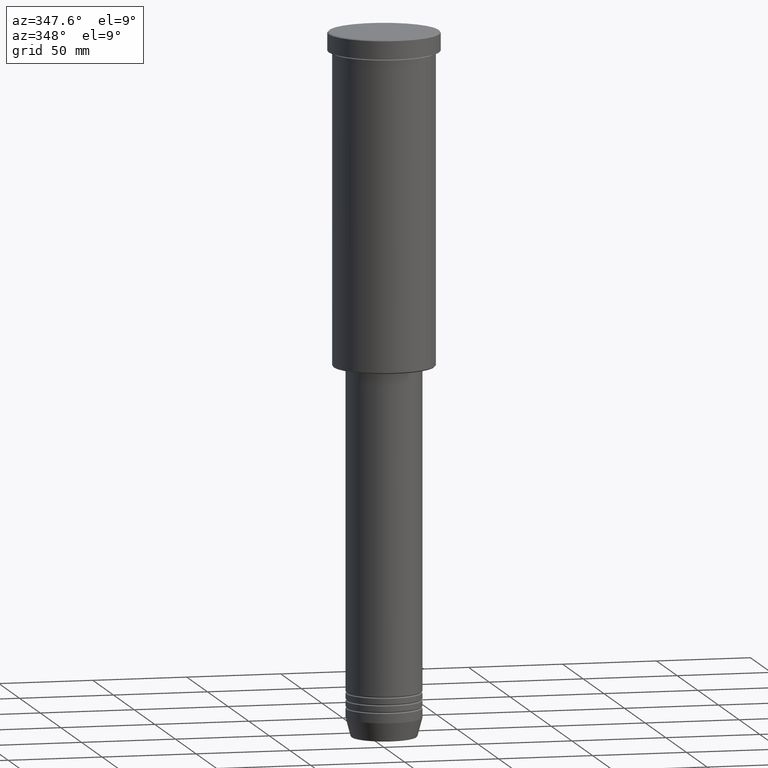
[diagram: clean part render]
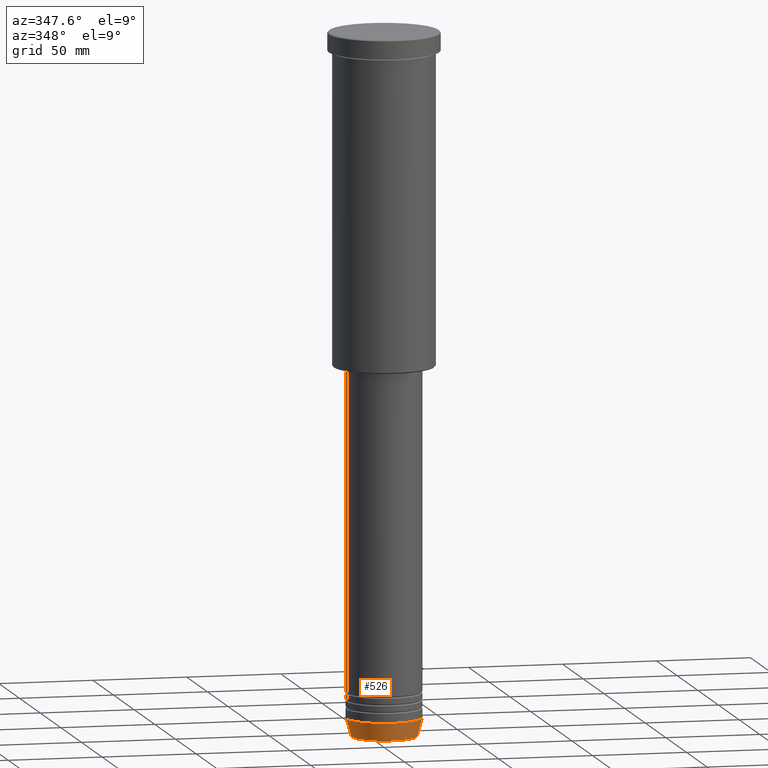
[diagram: same view with one face highlighted and labeled with its STEP entity id]
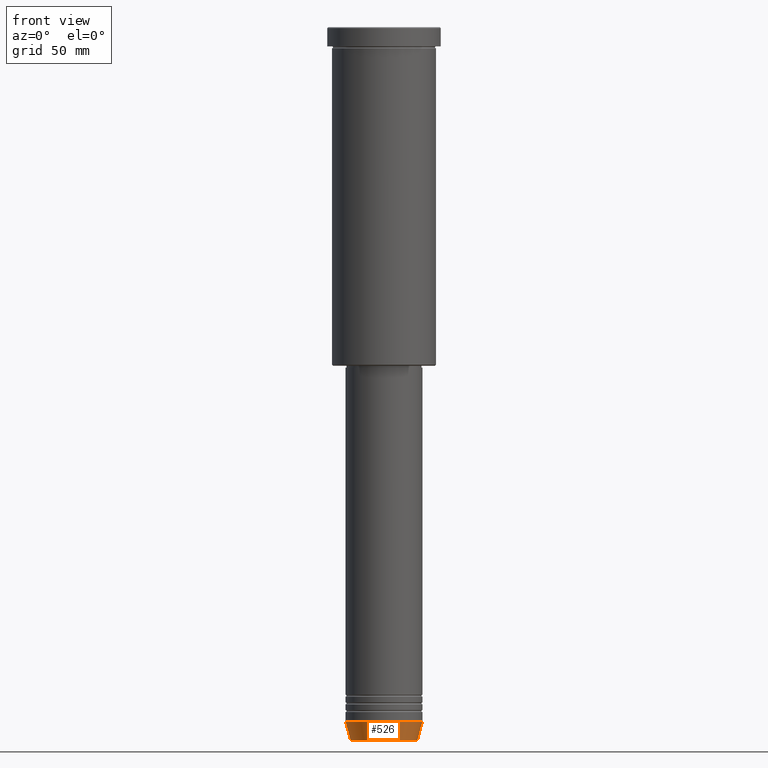
[diagram: same view with one face highlighted and labeled with its STEP entity id]
A machine part, auxiliary view. The second image highlights one B-rep face of the part: STEP entity #526.
A second angle (front view) of the same face is appended — the face is thin or edge-on in the first view.
In plain terms, the highlighted conical surface has half-angle 15 deg.
Its self-contained STEP definition (entity closure, byte-faithful):
#11 = ORIENTED_EDGE ( 'NONE', *, *, #881, .F. ) ;
#20 = AXIS2_PLACEMENT_3D ( 'NONE', #662, #651, #89 ) ;
#77 = VERTEX_POINT ( 'NONE', #787 ) ;
#79 = DIRECTION ( 'NONE',  ( 0.2588190451025211836, 0.000000000000000000, 0.9659258262890680902 ) ) ;
#89 = DIRECTION ( 'NONE',  ( 1.000000000000000000, 0.000000000000000000, 0.000000000000000000 ) ) ;
#144 = ORIENTED_EDGE ( 'NONE', *, *, #228, .T. ) ;
#162 = VERTEX_POINT ( 'NONE', #824 ) ;
#182 = CARTESIAN_POINT ( 'NONE',  ( -20.00000000000000000, 2.449293598294706513E-15, -361.0000000000000000 ) ) ;
#209 = CARTESIAN_POINT ( 'NONE',  ( 0.000000000000000000, 0.000000000000000000, -370.6294095225512706 ) ) ;
#223 = DIRECTION ( 'NONE',  ( -0.000000000000000000, -0.000000000000000000, 1.000000000000000000 ) ) ;
#228 = EDGE_CURVE ( 'NONE', #413, #162, #968, .T. ) ;
#287 = DIRECTION ( 'NONE',  ( 1.000000000000000000, 0.000000000000000000, 0.000000000000000000 ) ) ;
#335 = VECTOR ( 'NONE', #352, 1000.000000000000114 ) ;
#352 = DIRECTION ( 'NONE',  ( -0.2588190451025211836, 3.169619151431770488E-17, 0.9659258262890680902 ) ) ;
#388 = CARTESIAN_POINT ( 'NONE',  ( 17.41980749484382684, 0.000000000000000000, -370.6294095225512706 ) ) ;
#413 = VERTEX_POINT ( 'NONE', #388 ) ;
#415 = VERTEX_POINT ( 'NONE', #751 ) ;
#421 = CONICAL_SURFACE ( 'NONE', #20, 20.00000000000000000, 0.2617993877991499074 ) ;
#453 = LINE ( 'NONE', #182, #335 ) ;
#469 = EDGE_LOOP ( 'NONE', ( #1143, #801, #144, #11 ) ) ;
#526 = ADVANCED_FACE ( 'NONE', ( #1100 ), #421, .T. ) ;
#578 = DIRECTION ( 'NONE',  ( 1.000000000000000000, 0.000000000000000000, 0.000000000000000000 ) ) ;
#605 = VECTOR ( 'NONE', #79, 1000.000000000000114 ) ;
#632 = AXIS2_PLACEMENT_3D ( 'NONE', #209, #223, #578 ) ;
#651 = DIRECTION ( 'NONE',  ( -0.000000000000000000, -0.000000000000000000, 1.000000000000000000 ) ) ;
#662 = CARTESIAN_POINT ( 'NONE',  ( 0.000000000000000000, 0.000000000000000000, -361.0000000000000000 ) ) ;
#751 = CARTESIAN_POINT ( 'NONE',  ( -20.00000000000000000, 2.449293598294706513E-15, -361.0000000000000000 ) ) ;
#787 = CARTESIAN_POINT ( 'NONE',  ( -17.41980749484382684, 2.291302373663531915E-15, -370.6294095225512706 ) ) ;
#801 = ORIENTED_EDGE ( 'NONE', *, *, #1136, .T. ) ;
#803 = CARTESIAN_POINT ( 'NONE',  ( 20.00000000000000000, 0.000000000000000000, -361.0000000000000000 ) ) ;
#824 = CARTESIAN_POINT ( 'NONE',  ( 20.00000000000000000, 0.000000000000000000, -361.0000000000000000 ) ) ;
#829 = CARTESIAN_POINT ( 'NONE',  ( 0.000000000000000000, 0.000000000000000000, -361.0000000000000000 ) ) ;
#881 = EDGE_CURVE ( 'NONE', #415, #162, #987, .T. ) ;
#950 = EDGE_CURVE ( 'NONE', #77, #415, #453, .T. ) ;
#968 = LINE ( 'NONE', #803, #605 ) ;
#987 = CIRCLE ( 'NONE', #1181, 20.00000000000000000 ) ;
#1029 = DIRECTION ( 'NONE',  ( -0.000000000000000000, -0.000000000000000000, 1.000000000000000000 ) ) ;
#1100 = FACE_OUTER_BOUND ( 'NONE', #469, .T. ) ;
#1110 = CIRCLE ( 'NONE', #632, 17.41980749484382684 ) ;
#1136 = EDGE_CURVE ( 'NONE', #77, #413, #1110, .T. ) ;
#1143 = ORIENTED_EDGE ( 'NONE', *, *, #950, .F. ) ;
#1181 = AXIS2_PLACEMENT_3D ( 'NONE', #829, #1029, #287 ) ;